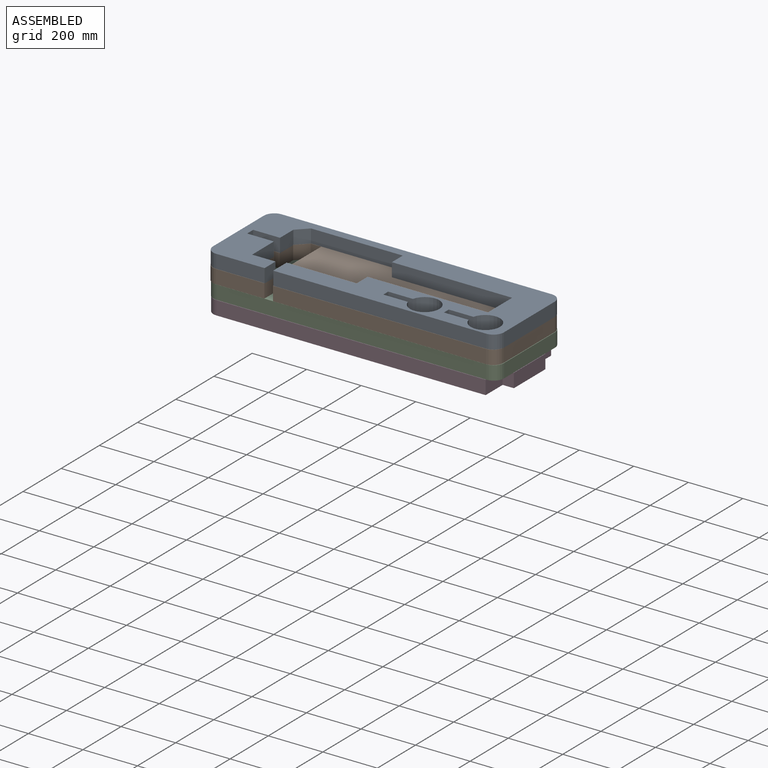
[diagram: assembled view]
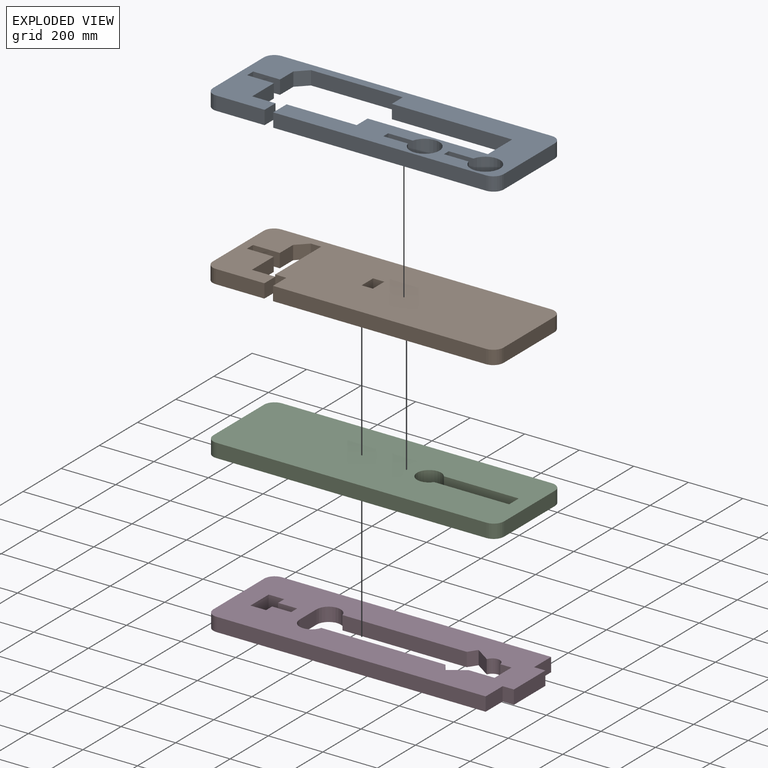
[diagram: exploded view]
GUIDED TOUR — MATED ASSEMBLY (Onshape document 7580505ec4c235a36268347d, AutoMate assembly 7580505ec4c235a36268347d_f68390bac710142e253799e7_36576ef746f60c5ac57179f1_default)

This assembly has 4 components, labeled P0..P3 below (a component is one placed occurrence of a part; the same part can appear more than once), held together by 3 mates. A mate is a constraint between two components; its type names the relative motion it leaves free:
  PARALLEL — keeps the two listed directions parallel.
Axis/direction vectors are unit vectors and 'through' points are millimeter coordinates, both in the assembly's world frame.

MATES
  1. PARALLEL "Parallel 3": P3 <-> P2, direction (0.000, 0.000, 1.000) through (-491.41, -96.13, -259.57) mm
  2. PARALLEL "Parallel 1": P0 <-> P1, direction (0.000, 0.000, -1.000) through (-16.39, -142.44, -157.36) mm
  3. PARALLEL "Parallel 2": P2 <-> P1, direction (0.000, 0.000, 1.000) through (-51.07, -143.92, -207.61) mm

ASSEMBLY ORDER
  1. P1 — the base component [order verified]
  2. P0 [order verified]
  3. P2 [order verified]
  4. P3 [order verified]
Order-tag legend:
  [order verified] — this step's position reverses a verified removal order: the component was checked to insert without passing through the ones already placed.

Of the 4 components, 4 carry the full construction recipe — the FeatureScript program that regenerates the part's solid from scratch; the rest are supplied as boundary geometry only.
Each toured component is shown spotlighted twice — in the assembled view, then in the exploded view, where a leader line traces a displaced component back to its assembled socket (saturated green if recipe-attached, orange if geometry-only; every other component desaturated gray) — followed by its recipe or geometry summary and the mates that hold it.
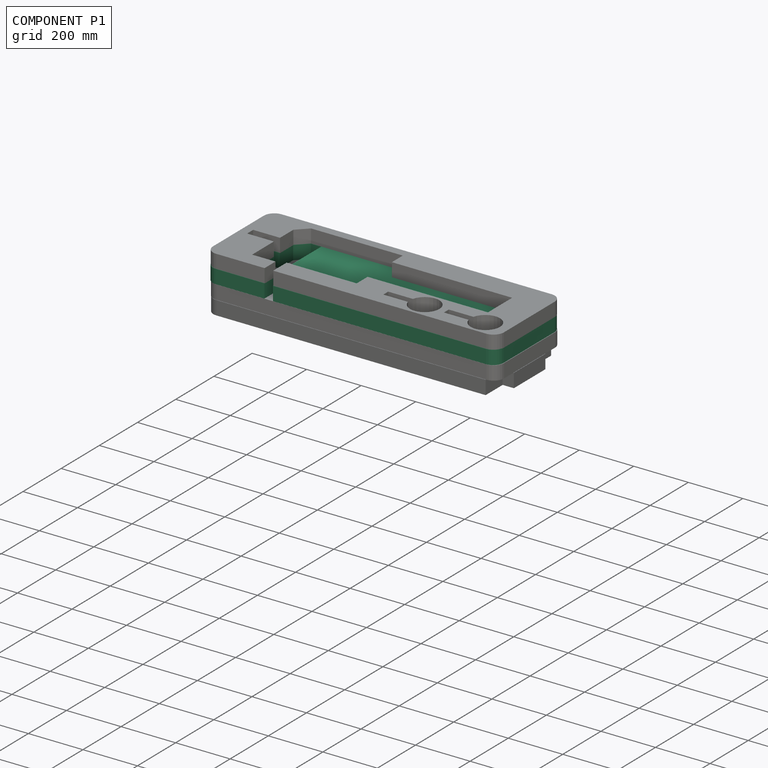
[diagram: component P1 — assembled]
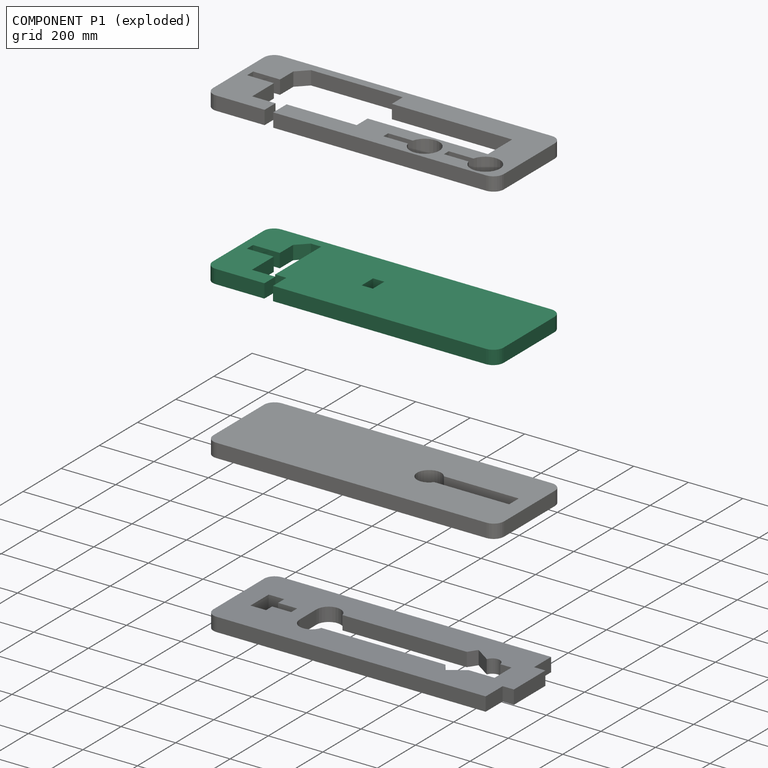
[diagram: component P1 — exploded]
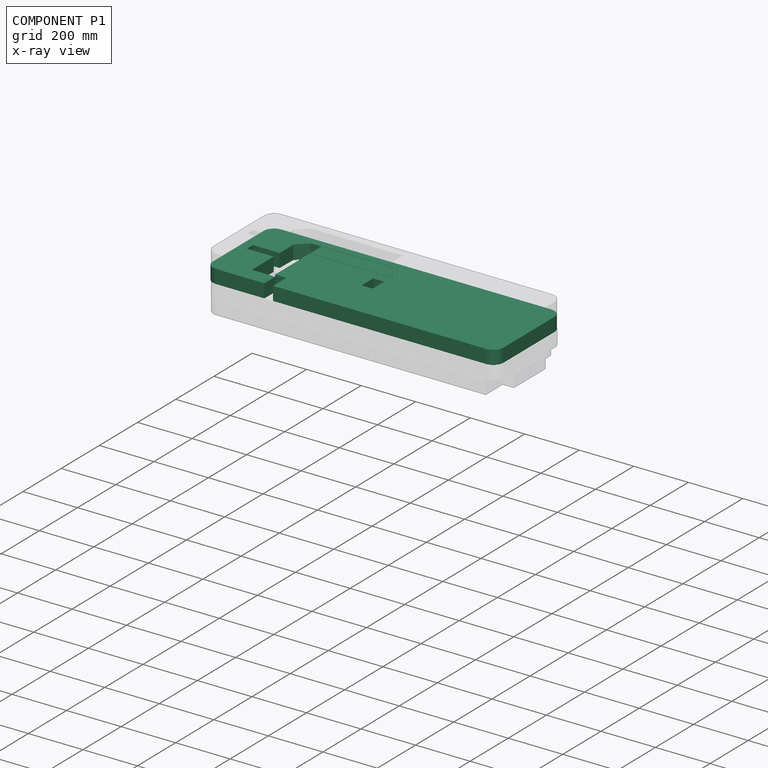
[diagram: component P1 — x-ray view]
COMPONENT P1 — recipe-attached (CADFS 00443604, mesh-verified: the recipe's output STEP matches this component's geometry to below the mesh-comparison resolution (tessellation chordal tolerance ~1.68 mm)).
Held by: PARALLEL mate "Parallel 1" to P0; PARALLEL mate "Parallel 2" to P2.
Construction recipe (FeatureScript — the CAD program that rebuilds this solid; sketch coordinates are in the units given by the * unit suffixes, e.g. mm):

FeatureScript 1540;
import(path : "onshape/std/geometry.fs", version : "1540.0");
import(path : "onshape/std/common.fs", version : "1540.0");
const mm = millimeter;
const VERTEX = EntityType.VERTEX;
const EDGE = EntityType.EDGE;
const FACE = EntityType.FACE;
const BODY = EntityType.BODY;
function v(x, y){return vector(x, y);}
function OD(order){return orderDisambiguation(order);}
function OSD(set){return originalSetDisambiguation(set);}
function TD(topology){return topologyDisambiguation(topology);}
function TDD(query){return trueDependencyDisambiguation(query);}
function sQuery(a, b, c) {return sketchEntityQuery(a, b, c);}

annotation { "Feature Type Name" : "Feature", "Feature Type Description" : "" }
export const myFeature = defineFeature(function(context is Context, id is Id, definition is map)
    precondition{}
    {
        {
            var Q0;
            Q0=qCreatedBy(makeId("Top.planeOp"),FACE);
            var sketch = newSketch(context, id + "F0", { "sketchPlane" : qUnion([Q0])});
            skLineSegment(sketch, "E0.bottom", {"start": v(533.4, -171.45) * mm, "end": v(-533.4, -171.45) * mm});
            skLineSegment(sketch, "E0.top", {"start": v(533.4, 171.45) * mm, "end": v(-533.4, 171.45) * mm});
            skLineSegment(sketch, "E0.left", {"start": v(533.4, -171.45) * mm, "end": v(533.4, 171.45) * mm});
            skLineSegment(sketch, "E0.right", {"start": v(-533.4, -171.45) * mm, "end": v(-533.4, 171.45) * mm});
            skPoint(sketch, "E0.middle", {"position": v(0, 0) * mm});
            skSolve(sketch);
        }
        {
            var Q0;
            Q0=qSketchRegion(id+"F0",true);
            extrude(context, id + "F1", {"entities" : qUnion([Q0]), "depth" : 50.8 * mm});
        }
        {
            var Q0;
            Q0=makeQuery(id+"F1.opExtrude","CAP_FACE",FACE,{"disambiguationData":[OSD([sQuery(id+"F0.wireOp",EDGE,"E0.bottom"),sQuery(id+"F0.wireOp",EDGE,"E0.top"),sQuery(id+"F0.wireOp",EDGE,"E0.left"),sQuery(id+"F0.wireOp",EDGE,"E0.right")])],"isStart":false});
            var sketch = newSketch(context, id + "F2", { "sketchPlane" : qUnion([Q0])});
            skLineSegment(sketch, "E1", {"start": v(-317.5, -171.45) * mm, "end": v(-285.75, -171.45) * mm});
            skLineSegment(sketch, "E2", {"start": v(-317.5, -171.45) * mm, "end": v(-317.5, -114.3) * mm});
            skLineSegment(sketch, "E3", {"start": v(-285.75, -171.45) * mm, "end": v(-285.75, -101.6) * mm});
            skLineSegment(sketch, "E4", {"start": v(-327.03, -101.6) * mm, "end": v(-285.75, -101.6) * mm});
            skLineSegment(sketch, "E5", {"start": v(-403.23, 101.54) * mm, "end": v(-403.23, 31.75) * mm});
            skLineSegment(sketch, "E6", {"start": v(-403.23, 31.75) * mm, "end": v(-501.65, 31.75) * mm});
            skLineSegment(sketch, "E7", {"start": v(-501.65, 31.75) * mm, "end": v(-501.65, 0) * mm});
            skLineSegment(sketch, "E8", {"start": v(-501.65, 0) * mm, "end": v(-403.23, 0) * mm});
            skLineSegment(sketch, "E9", {"start": v(-403.23, 0) * mm, "end": v(-403.23, -114.3) * mm});
            skLineSegment(sketch, "E10", {"start": v(-403.22, -114.3) * mm, "end": v(-317.5, -114.3) * mm});
            skLineSegment(sketch, "E11", {"start": v(-327.03, 139.7) * mm, "end": v(-365.13, 139.7) * mm});
            skLineSegment(sketch, "E12", {"start": v(-365.13, 139.7) * mm, "end": v(-403.23, 101.54) * mm});
            skLineSegment(sketch, "E13", {"start": v(-327.03, 139.7) * mm, "end": v(-327.03, -101.6) * mm});
            skLineSegment(sketch, "E14.bottom", {"start": v(-28.58, -15.87) * mm, "end": v(-69.85, -15.87) * mm});
            skLineSegment(sketch, "E14.top", {"start": v(-28.58, 44.45) * mm, "end": v(-69.85, 44.45) * mm});
            skLineSegment(sketch, "E14.left", {"start": v(-28.58, -15.87) * mm, "end": v(-28.58, 44.45) * mm});
            skLineSegment(sketch, "E14.right", {"start": v(-69.85, -15.87) * mm, "end": v(-69.85, 44.45) * mm});
            skPoint(sketch, "E14.middle", {"position": v(-49.21, 14.29) * mm});
            skSolve(sketch);
        }
        {
            var Q0;
            Q0=qSketchRegion(id+"F2",true);
            extrude(context, id + "F3", {"entities" : qUnion([Q0]), "operationType" : NewBodyOperationType.REMOVE, "oppositeDirection" : true, "depth" : 50.8 * mm});
        }
        {
            var Q0;
            Q0=makeQuery(id+"F1.opExtrude","SWEPT_EDGE",EDGE,{"disambiguationData":[OSD([sQuery(id+"F0.wireOp",EDGE,"E0.top"),sQuery(id+"F0.wireOp",EDGE,"E0.right")])]});
            var Q1;
            Q1=makeQuery(id+"F1.opExtrude","SWEPT_EDGE",EDGE,{"disambiguationData":[OSD([sQuery(id+"F0.wireOp",EDGE,"E0.bottom"),sQuery(id+"F0.wireOp",EDGE,"E0.right")])]});
            var Q2;
            Q2=makeQuery(id+"F1.opExtrude","SWEPT_EDGE",EDGE,{"disambiguationData":[OSD([sQuery(id+"F0.wireOp",EDGE,"E0.top"),sQuery(id+"F0.wireOp",EDGE,"E0.left")])]});
            var Q3;
            Q3=makeQuery(id+"F1.opExtrude","SWEPT_EDGE",EDGE,{"disambiguationData":[OSD([sQuery(id+"F0.wireOp",EDGE,"E0.bottom"),sQuery(id+"F0.wireOp",EDGE,"E0.left")])]});
            fillet(context, id + "F4", {"entities" : qUnion([Q0, Q1, Q2, Q3]), "radius" : 38.1 * mm, "tangentPropagation" : true, "allowEdgeOverflow" : false});
        }
    });
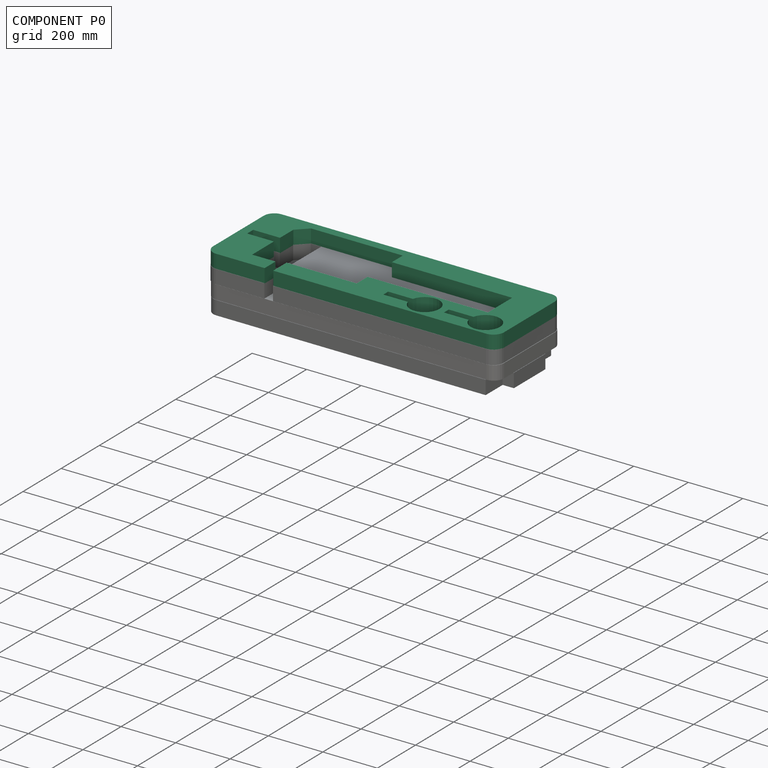
[diagram: component P0 — assembled]
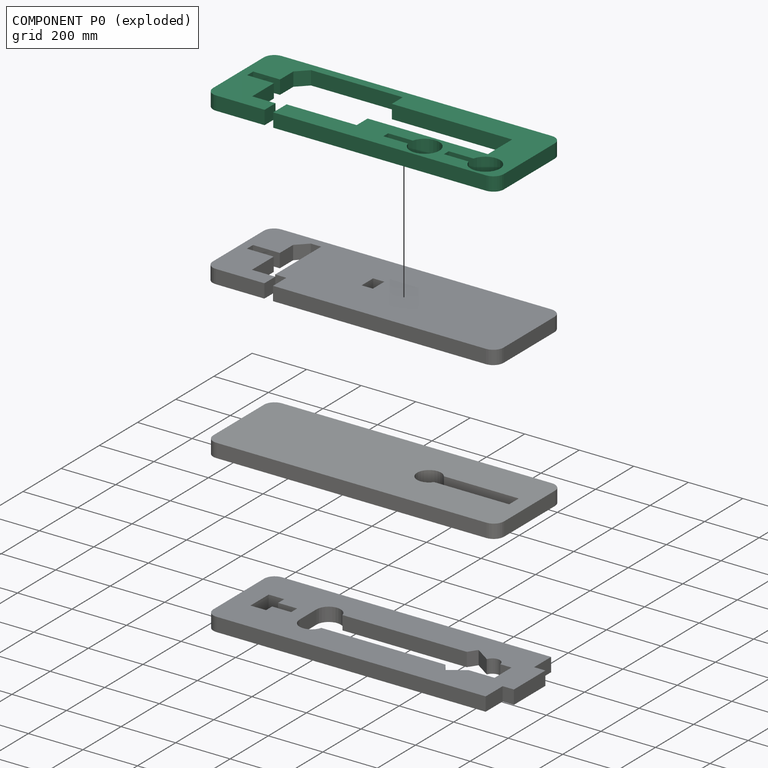
[diagram: component P0 — exploded]
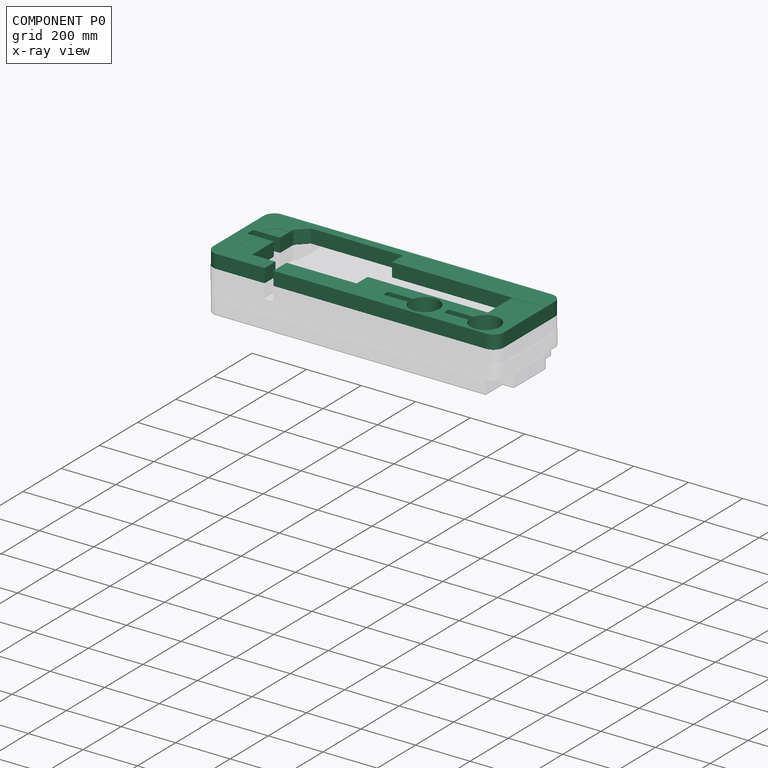
[diagram: component P0 — x-ray view]
COMPONENT P0 — recipe-attached (CADFS 00443603, mesh-verified: the recipe's output STEP matches this component's geometry to below the mesh-comparison resolution (tessellation chordal tolerance ~1.68 mm)).
Held by: PARALLEL mate "Parallel 1" to P1.
Construction recipe (FeatureScript — the CAD program that rebuilds this solid; sketch coordinates are in the units given by the * unit suffixes, e.g. mm):

FeatureScript 1540;
import(path : "onshape/std/geometry.fs", version : "1540.0");
import(path : "onshape/std/common.fs", version : "1540.0");
const mm = millimeter;
const VERTEX = EntityType.VERTEX;
const EDGE = EntityType.EDGE;
const FACE = EntityType.FACE;
const BODY = EntityType.BODY;
function v(x, y){return vector(x, y);}
function OD(order){return orderDisambiguation(order);}
function OSD(set){return originalSetDisambiguation(set);}
function TD(topology){return topologyDisambiguation(topology);}
function TDD(query){return trueDependencyDisambiguation(query);}
function sQuery(a, b, c) {return sketchEntityQuery(a, b, c);}

annotation { "Feature Type Name" : "Feature", "Feature Type Description" : "" }
export const myFeature = defineFeature(function(context is Context, id is Id, definition is map)
    precondition{}
    {
        {
            var Q0;
            Q0=qCreatedBy(makeId("Top.planeOp"),FACE);
            var sketch = newSketch(context, id + "F0", { "sketchPlane" : qUnion([Q0])});
            skLineSegment(sketch, "E0.bottom", {"start": v(533.4, -171.45) * mm, "end": v(-533.4, -171.45) * mm});
            skLineSegment(sketch, "E0.top", {"start": v(533.4, 171.45) * mm, "end": v(-533.4, 171.45) * mm});
            skLineSegment(sketch, "E0.left", {"start": v(533.4, -171.45) * mm, "end": v(533.4, 171.45) * mm});
            skLineSegment(sketch, "E0.right", {"start": v(-533.4, -171.45) * mm, "end": v(-533.4, 171.45) * mm});
            skPoint(sketch, "E0.middle", {"position": v(0, 0) * mm});
            skSolve(sketch);
        }
        {
            var Q0;
            Q0 = qSketchRegion(id + "F0", true);
            extrude(context, id + "F1", {"entities" : qUnion([Q0]), "depth" : 50.8 * mm});
        }
        {
            var Q0;
            Q0=makeQuery(id+"F1.opExtrude","CAP_FACE",FACE,{"disambiguationData":[OSD([sQuery(id+"F0.wireOp",EDGE,"E0.bottom"),sQuery(id+"F0.wireOp",EDGE,"E0.top"),sQuery(id+"F0.wireOp",EDGE,"E0.left"),sQuery(id+"F0.wireOp",EDGE,"E0.right")])],"isStart":false});
            var sketch = newSketch(context, id + "F2", { "sketchPlane" : qUnion([Q0])});
            skLineSegment(sketch, "E1", {"start": v(-317.5, -171.45) * mm, "end": v(-285.75, -171.45) * mm});
            skLineSegment(sketch, "E2", {"start": v(412.75, 82.55) * mm, "end": v(-28.57, 82.55) * mm});
            skLineSegment(sketch, "E3", {"start": v(-28.57, 82.55) * mm, "end": v(-28.57, 139.7) * mm});
            skLineSegment(sketch, "E4", {"start": v(-317.5, -171.45) * mm, "end": v(-317.5, -114.3) * mm});
            skLineSegment(sketch, "E5", {"start": v(-285.75, -171.45) * mm, "end": v(-285.75, -101.6) * mm});
            skLineSegment(sketch, "E6", {"start": v(-285.75, -101.6) * mm, "end": v(-28.57, -101.6) * mm});
            skLineSegment(sketch, "E7", {"start": v(-28.57, -101.6) * mm, "end": v(-28.57, -44.45) * mm});
            skLineSegment(sketch, "E8", {"start": v(-28.57, -44.45) * mm, "end": v(412.75, -44.45) * mm});
            skLineSegment(sketch, "E9", {"start": v(412.75, -44.45) * mm, "end": v(412.75, 82.55) * mm});
            skLineSegment(sketch, "E10", {"start": v(-403.23, 101.54) * mm, "end": v(-403.23, 31.75) * mm});
            skLineSegment(sketch, "E11", {"start": v(-403.23, 31.75) * mm, "end": v(-501.65, 31.75) * mm});
            skLineSegment(sketch, "E12", {"start": v(-501.65, 31.75) * mm, "end": v(-501.65, 0) * mm});
            skLineSegment(sketch, "E13", {"start": v(-501.65, 0) * mm, "end": v(-403.23, 0) * mm});
            skLineSegment(sketch, "E14", {"start": v(-403.23, 0) * mm, "end": v(-403.23, -114.3) * mm});
            skLineSegment(sketch, "E15", {"start": v(-403.22, -114.3) * mm, "end": v(-317.5, -114.3) * mm});
            skLineSegment(sketch, "E16", {"start": v(-28.57, 139.7) * mm, "end": v(-365.13, 139.7) * mm});
            skLineSegment(sketch, "E17", {"start": v(-365.13, 139.7) * mm, "end": v(-403.23, 101.54) * mm});
            skSolve(sketch);
        }
        {
            var Q0;
            Q0 = qSketchRegion(id + "F2", true);
            extrude(context, id + "F3", {"entities" : qUnion([Q0]), "operationType" : NewBodyOperationType.REMOVE, "oppositeDirection" : true, "depth" : 50.8 * mm});
        }
        {
            var Q0;
            Q0=makeQuery(id+"F1.opExtrude","SWEPT_EDGE",EDGE,{"disambiguationData":[OSD([sQuery(id+"F0.wireOp",EDGE,"E0.top"),sQuery(id+"F0.wireOp",EDGE,"E0.right")])]});
            var Q1;
            Q1=makeQuery(id+"F1.opExtrude","SWEPT_EDGE",EDGE,{"disambiguationData":[OSD([sQuery(id+"F0.wireOp",EDGE,"E0.bottom"),sQuery(id+"F0.wireOp",EDGE,"E0.right")])]});
            var Q2;
            Q2=makeQuery(id+"F1.opExtrude","SWEPT_EDGE",EDGE,{"disambiguationData":[OSD([sQuery(id+"F0.wireOp",EDGE,"E0.top"),sQuery(id+"F0.wireOp",EDGE,"E0.left")])]});
            var Q3;
            Q3=makeQuery(id+"F1.opExtrude","SWEPT_EDGE",EDGE,{"disambiguationData":[OSD([sQuery(id+"F0.wireOp",EDGE,"E0.bottom"),sQuery(id+"F0.wireOp",EDGE,"E0.left")])]});
            fillet(context, id + "F4", {"entities" : qUnion([Q0, Q1, Q2, Q3]), "radius" : 38.1 * mm, "tangentPropagation" : true, "allowEdgeOverflow" : false});
        }
        {
            var Q0;
            Q0=makeQuery(id+"F1.opExtrude","CAP_FACE",FACE,{"disambiguationData":[OSD([sQuery(id+"F0.wireOp",EDGE,"E0.bottom"),sQuery(id+"F0.wireOp",EDGE,"E0.top"),sQuery(id+"F0.wireOp",EDGE,"E0.left"),sQuery(id+"F0.wireOp",EDGE,"E0.right")])],"isStart":false});
            var sketch = newSketch(context, id + "F5", { "sketchPlane" : qUnion([Q0])});
            skLineSegment(sketch, "E18", {"start": v(82.55, -95.25) * mm, "end": v(82.55, -120.65) * mm});
            skCircle(sketch, "E19", {"center": v(225.43, -107.95) * mm, "radius": 53.97 * mm});
            skPoint(sketch, "E19.centerSnap0", {"position": v(82.55, -107.95) * mm});
            skLineSegment(sketch, "E20", {"start": v(82.55, -95.25) * mm, "end": v(172.97, -95.25) * mm});
            skLineSegment(sketch, "E21", {"start": v(82.55, -120.65) * mm, "end": v(172.97, -120.65) * mm});
            skSolve(sketch);
        }
        {
            var Q0;
            Q0 = qSketchRegion(id + "F5", true);
            extrude(context, id + "F6", {"entities" : qUnion([Q0]), "operationType" : NewBodyOperationType.REMOVE, "oppositeDirection" : true, "depth" : 50.8 * mm});
        }
        {
            var Q0;
            Q0=makeQuery(id+"F1.opExtrude","CAP_FACE",FACE,{"disambiguationData":[OSD([sQuery(id+"F0.wireOp",EDGE,"E0.bottom"),sQuery(id+"F0.wireOp",EDGE,"E0.top"),sQuery(id+"F0.wireOp",EDGE,"E0.left"),sQuery(id+"F0.wireOp",EDGE,"E0.right")])],"isStart":false});
            var sketch = newSketch(context, id + "F7", { "sketchPlane" : qUnion([Q0])});
            skLineSegment(sketch, "E22", {"start": v(304.8, -95.25) * mm, "end": v(304.8, -120.65) * mm});
            skCircle(sketch, "E23", {"center": v(447.68, -107.95) * mm, "radius": 53.97 * mm});
            skPoint(sketch, "E23.centerSnap0", {"position": v(304.8, -107.95) * mm});
            skLineSegment(sketch, "E24", {"start": v(304.8, -95.25) * mm, "end": v(395.22, -95.25) * mm});
            skLineSegment(sketch, "E25", {"start": v(304.8, -120.65) * mm, "end": v(395.22, -120.65) * mm});
            skSolve(sketch);
        }
        {
            var Q0;
            Q0 = qSketchRegion(id + "F7", true);
            extrude(context, id + "F8", {"entities" : qUnion([Q0]), "operationType" : NewBodyOperationType.REMOVE, "oppositeDirection" : true, "depth" : 50.8 * mm});
        }
    });
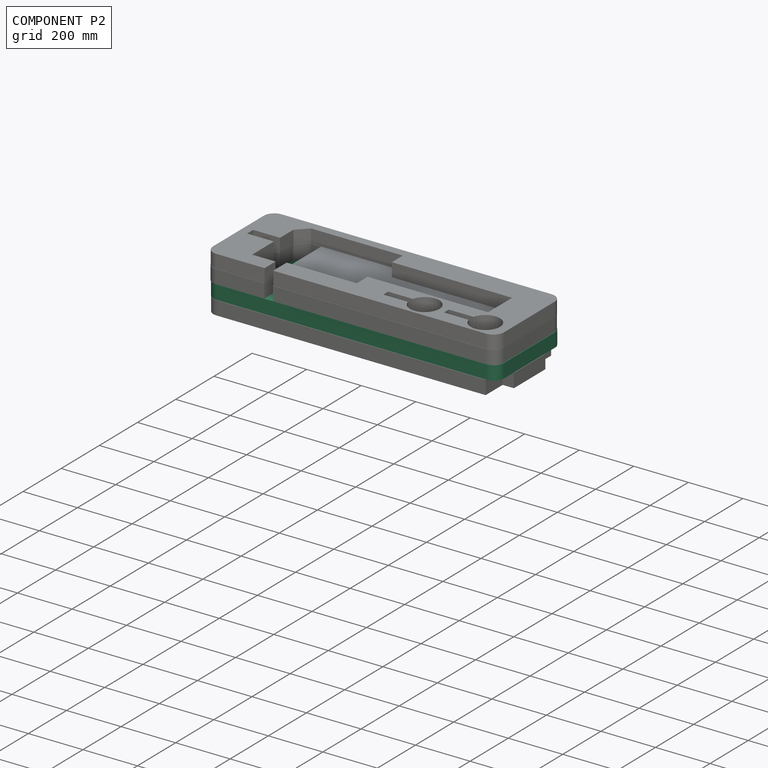
[diagram: component P2 — assembled]
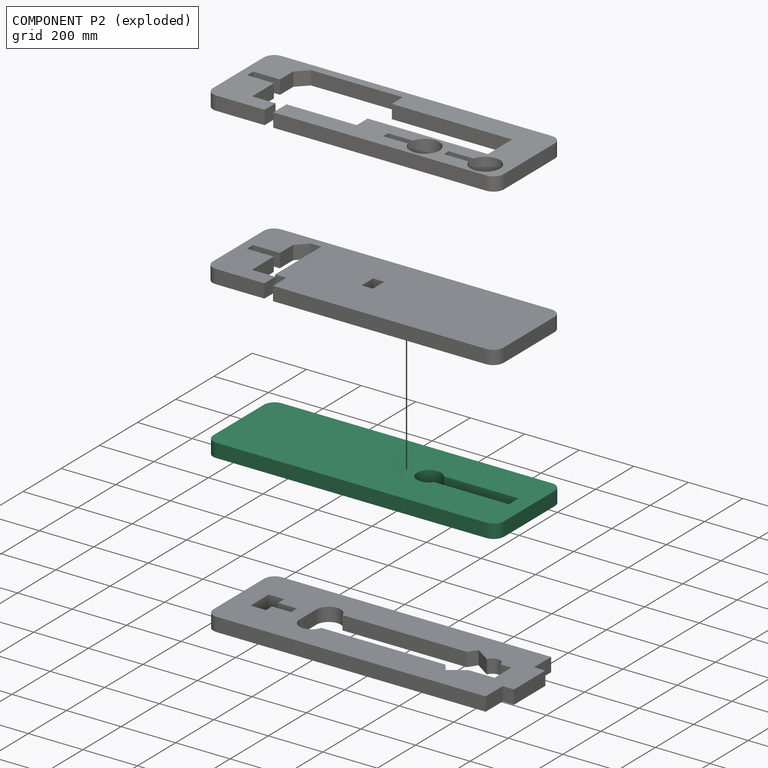
[diagram: component P2 — exploded]
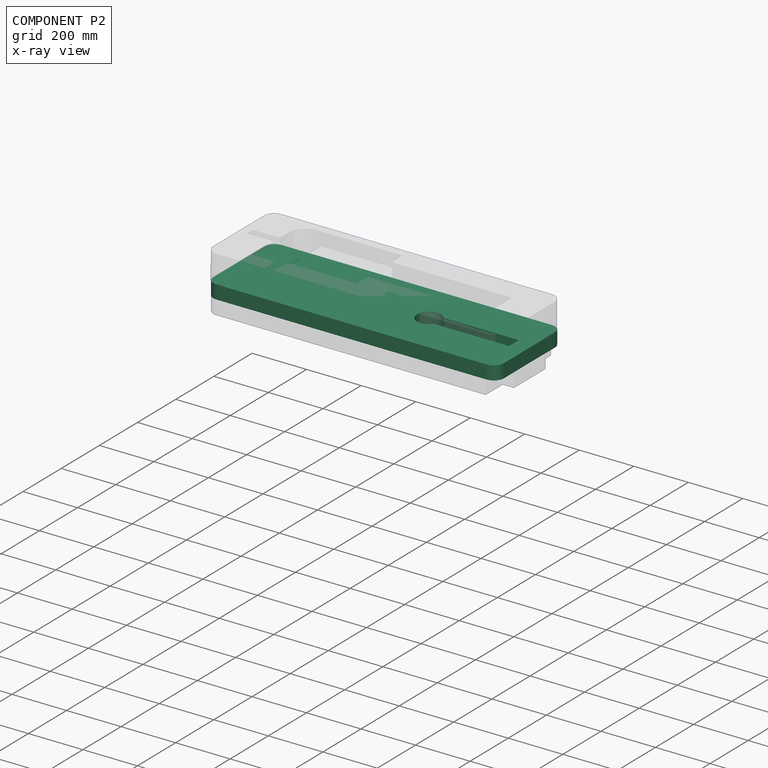
[diagram: component P2 — x-ray view]
COMPONENT P2 — recipe-attached (CADFS 00443606, mesh-verified: the recipe's output STEP matches this component's geometry to below the mesh-comparison resolution (tessellation chordal tolerance ~1.68 mm)).
Held by: PARALLEL mate "Parallel 3" to P3; PARALLEL mate "Parallel 2" to P1.
Construction recipe (FeatureScript — the CAD program that rebuilds this solid; sketch coordinates are in the units given by the * unit suffixes, e.g. mm):

FeatureScript 1540;
import(path : "onshape/std/geometry.fs", version : "1540.0");
import(path : "onshape/std/common.fs", version : "1540.0");
const mm = millimeter;
const VERTEX = EntityType.VERTEX;
const EDGE = EntityType.EDGE;
const FACE = EntityType.FACE;
const BODY = EntityType.BODY;
function v(x, y){return vector(x, y);}
function OD(order){return orderDisambiguation(order);}
function OSD(set){return originalSetDisambiguation(set);}
function TD(topology){return topologyDisambiguation(topology);}
function TDD(query){return trueDependencyDisambiguation(query);}
function sQuery(a, b, c) {return sketchEntityQuery(a, b, c);}

annotation { "Feature Type Name" : "Feature", "Feature Type Description" : "" }
export const myFeature = defineFeature(function(context is Context, id is Id, definition is map)
    precondition{}
    {
        {
            var Q0;
            Q0=qCreatedBy(makeId("Top.planeOp"),FACE);
            var sketch = newSketch(context, id + "F0", { "sketchPlane" : qUnion([Q0])});
            skLineSegment(sketch, "E0.bottom", {"start": v(533.4, -171.45) * mm, "end": v(-533.4, -171.45) * mm});
            skLineSegment(sketch, "E0.top", {"start": v(533.4, 171.45) * mm, "end": v(-533.4, 171.45) * mm});
            skLineSegment(sketch, "E0.left", {"start": v(533.4, -171.45) * mm, "end": v(533.4, 171.45) * mm});
            skLineSegment(sketch, "E0.right", {"start": v(-533.4, -171.45) * mm, "end": v(-533.4, 171.45) * mm});
            skPoint(sketch, "E0.middle", {"position": v(0, 0) * mm});
            skSolve(sketch);
        }
        {
            var Q0;
            Q0=qSketchRegion(id+"F0",true);
            extrude(context, id + "F1", {"entities" : qUnion([Q0]), "depth" : 50.8 * mm});
        }
        {
            var Q0;
            Q0=makeQuery(id+"F1.opExtrude","SWEPT_EDGE",EDGE,{"disambiguationData":[OSD([sQuery(id+"F0.wireOp",EDGE,"E0.top"),sQuery(id+"F0.wireOp",EDGE,"E0.right")])]});
            var Q1;
            Q1=makeQuery(id+"F1.opExtrude","SWEPT_EDGE",EDGE,{"disambiguationData":[OSD([sQuery(id+"F0.wireOp",EDGE,"E0.bottom"),sQuery(id+"F0.wireOp",EDGE,"E0.right")])]});
            var Q2;
            Q2=makeQuery(id+"F1.opExtrude","SWEPT_EDGE",EDGE,{"disambiguationData":[OSD([sQuery(id+"F0.wireOp",EDGE,"E0.top"),sQuery(id+"F0.wireOp",EDGE,"E0.left")])]});
            var Q3;
            Q3=makeQuery(id+"F1.opExtrude","SWEPT_EDGE",EDGE,{"disambiguationData":[OSD([sQuery(id+"F0.wireOp",EDGE,"E0.bottom"),sQuery(id+"F0.wireOp",EDGE,"E0.left")])]});
            fillet(context, id + "F2", {"entities" : qUnion([Q0, Q1, Q2, Q3]), "radius" : 38.1 * mm, "tangentPropagation" : true, "allowEdgeOverflow" : false});
        }
        {
            var Q0;
            Q0=makeQuery(id+"F1.opExtrude","CAP_FACE",FACE,{"disambiguationData":[OSD([sQuery(id+"F0.wireOp",EDGE,"E0.bottom"),sQuery(id+"F0.wireOp",EDGE,"E0.top"),sQuery(id+"F0.wireOp",EDGE,"E0.left"),sQuery(id+"F0.wireOp",EDGE,"E0.right")])],"isStart":false});
            var sketch = newSketch(context, id + "F3", { "sketchPlane" : qUnion([Q0])});
            skCircle(sketch, "E1", {"center": v(165.1, 0) * mm, "radius": 44.45 * mm});
            skLineSegment(sketch, "E2", {"start": v(201.58, 25.4) * mm, "end": v(476.25, 25.4) * mm});
            skLineSegment(sketch, "E3", {"start": v(476.25, 25.4) * mm, "end": v(476.25, -25.4) * mm});
            skLineSegment(sketch, "E4", {"start": v(476.25, -25.4) * mm, "end": v(201.58, -25.4) * mm});
            skSolve(sketch);
        }
        {
            var Q0;
            Q0 = qSketchRegion(id + "F3", true);
            extrude(context, id + "F4", {"entities" : qUnion([Q0]), "operationType" : NewBodyOperationType.REMOVE, "oppositeDirection" : true, "depth" : 50.8 * mm});
        }
    });
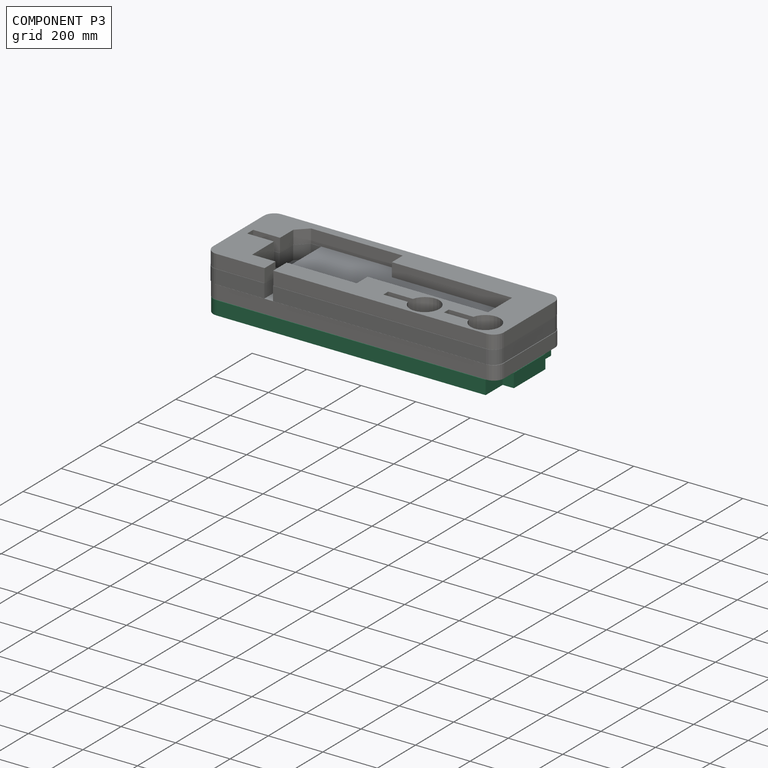
[diagram: component P3 — assembled]
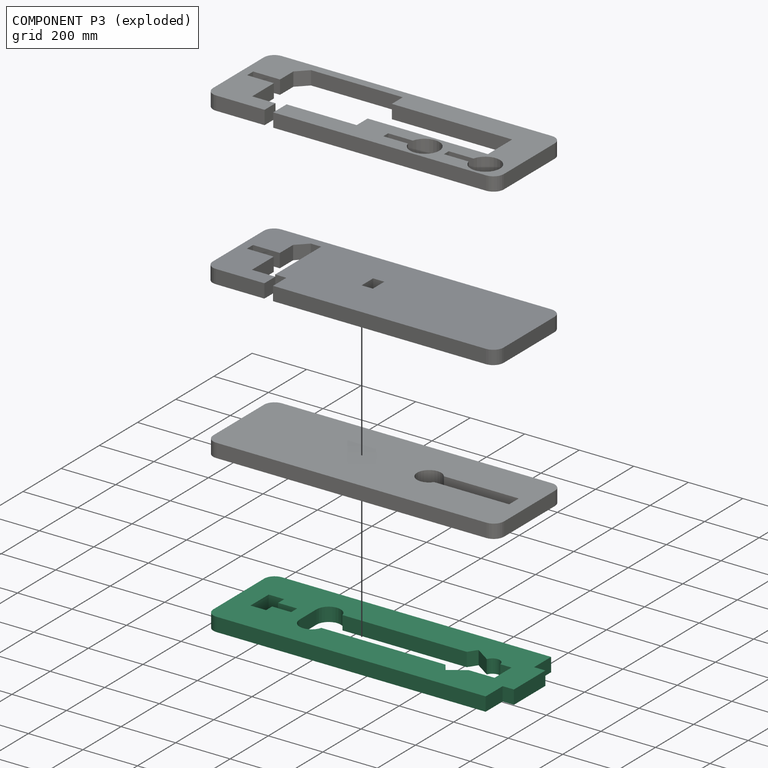
[diagram: component P3 — exploded]
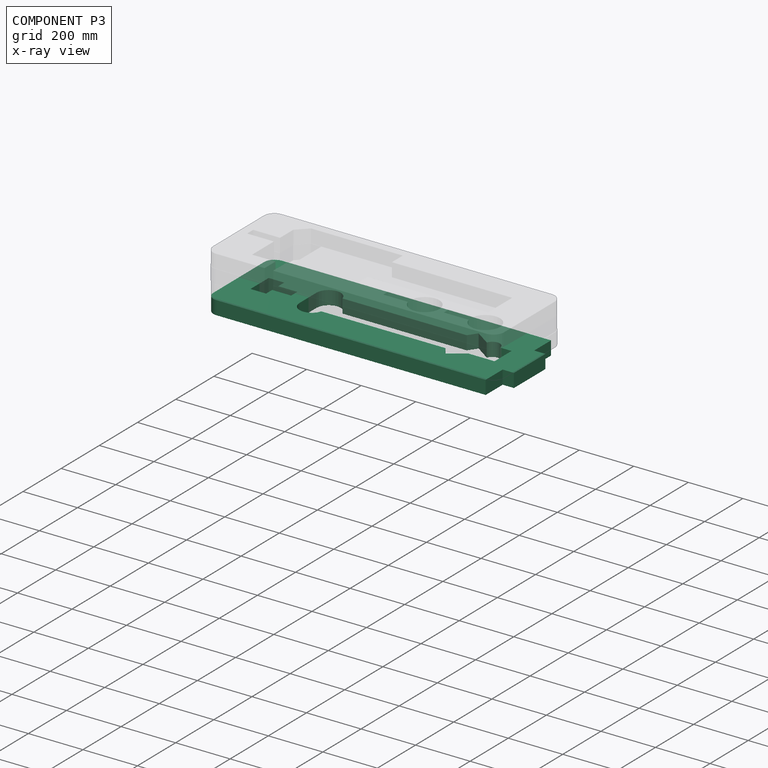
[diagram: component P3 — x-ray view]
COMPONENT P3 — recipe-attached (CADFS 00443607, mesh-verified: the recipe's output STEP matches this component's geometry to below the mesh-comparison resolution (tessellation chordal tolerance ~1.68 mm)).
Held by: PARALLEL mate "Parallel 3" to P2.
Construction recipe (FeatureScript — the CAD program that rebuilds this solid; sketch coordinates are in the units given by the * unit suffixes, e.g. mm):

FeatureScript 1540;
import(path : "onshape/std/geometry.fs", version : "1540.0");
import(path : "onshape/std/common.fs", version : "1540.0");
const mm = millimeter;
const VERTEX = EntityType.VERTEX;
const EDGE = EntityType.EDGE;
const FACE = EntityType.FACE;
const BODY = EntityType.BODY;
function v(x, y){return vector(x, y);}
function OD(order){return orderDisambiguation(order);}
function OSD(set){return originalSetDisambiguation(set);}
function TD(topology){return topologyDisambiguation(topology);}
function TDD(query){return trueDependencyDisambiguation(query);}
function sQuery(a, b, c) {return sketchEntityQuery(a, b, c);}

annotation { "Feature Type Name" : "Feature", "Feature Type Description" : "" }
export const myFeature = defineFeature(function(context is Context, id is Id, definition is map)
    precondition{}
    {
        {
            var Q0;
            Q0=qCreatedBy(makeId("Top.planeOp"),FACE);
            var sketch = newSketch(context, id + "F0", { "sketchPlane" : qUnion([Q0])});
            skLineSegment(sketch, "E0.bottom", {"start": v(533.4, -171.45) * mm, "end": v(-533.4, -171.45) * mm});
            skLineSegment(sketch, "E0.top", {"start": v(533.4, 171.45) * mm, "end": v(-533.4, 171.45) * mm});
            skLineSegment(sketch, "E0.left", {"start": v(533.4, -171.45) * mm, "end": v(533.4, 171.45) * mm});
            skLineSegment(sketch, "E0.right", {"start": v(-533.4, -171.45) * mm, "end": v(-533.4, 171.45) * mm});
            skPoint(sketch, "E0.middle", {"position": v(0, 0) * mm});
            skSolve(sketch);
        }
        {
            var Q0;
            Q0=qSketchRegion(id+"F0",true);
            extrude(context, id + "F1", {"entities" : qUnion([Q0]), "depth" : 50.8 * mm});
        }
        {
            var Q0;
            Q0=makeQuery(id+"F1.opExtrude","SWEPT_EDGE",EDGE,{"disambiguationData":[OSD([sQuery(id+"F0.wireOp",EDGE,"E0.top"),sQuery(id+"F0.wireOp",EDGE,"E0.right")])]});
            var Q1;
            Q1=makeQuery(id+"F1.opExtrude","SWEPT_EDGE",EDGE,{"disambiguationData":[OSD([sQuery(id+"F0.wireOp",EDGE,"E0.bottom"),sQuery(id+"F0.wireOp",EDGE,"E0.right")])]});
            var Q2;
            Q2=makeQuery(id+"F1.opExtrude","SWEPT_EDGE",EDGE,{"disambiguationData":[OSD([sQuery(id+"F0.wireOp",EDGE,"E0.top"),sQuery(id+"F0.wireOp",EDGE,"E0.left")])]});
            var Q3;
            Q3=makeQuery(id+"F1.opExtrude","SWEPT_EDGE",EDGE,{"disambiguationData":[OSD([sQuery(id+"F0.wireOp",EDGE,"E0.bottom"),sQuery(id+"F0.wireOp",EDGE,"E0.left")])]});
            fillet(context, id + "F2", {"entities" : qUnion([Q0, Q1, Q2, Q3]), "radius" : 38.1 * mm, "tangentPropagation" : true, "allowEdgeOverflow" : false});
        }
        {
            var Q0;
            Q0=makeQuery(id+"F1.opExtrude","CAP_FACE",FACE,{"disambiguationData":[OSD([sQuery(id+"F0.wireOp",EDGE,"E0.bottom"),sQuery(id+"F0.wireOp",EDGE,"E0.top"),sQuery(id+"F0.wireOp",EDGE,"E0.left"),sQuery(id+"F0.wireOp",EDGE,"E0.right")])],"isStart":false});
            var sketch = newSketch(context, id + "F3", { "sketchPlane" : qUnion([Q0])});
            skLineSegment(sketch, "E1", {"start": v(492.13, 171.45) * mm, "end": v(492.13, 82.55) * mm});
            skLineSegment(sketch, "E2", {"start": v(492.13, 82.55) * mm, "end": v(533.4, 82.55) * mm});
            skLineSegment(sketch, "E3", {"start": v(492.13, -171.45) * mm, "end": v(492.13, -82.55) * mm});
            skLineSegment(sketch, "E4", {"start": v(492.13, -82.55) * mm, "end": v(533.4, -82.55) * mm});
            skLineSegment(sketch, "E5", {"start": v(533.4, -82.55) * mm, "end": v(533.4, -171.45) * mm});
            skLineSegment(sketch, "E6", {"start": v(533.4, -171.45) * mm, "end": v(492.13, -171.45) * mm});
            skLineSegment(sketch, "E7", {"start": v(492.13, 171.45) * mm, "end": v(533.4, 171.45) * mm});
            skLineSegment(sketch, "E8", {"start": v(533.4, 171.45) * mm, "end": v(533.4, 82.55) * mm});
            skSolve(sketch);
        }
        {
            var Q0;
            Q0 = qSketchRegion(id + "F3", true);
            extrude(context, id + "F4", {"entities" : qUnion([Q0]), "operationType" : NewBodyOperationType.REMOVE, "oppositeDirection" : true, "depth" : 50.8 * mm});
        }
        {
            var Q0;
            Q0=makeQuery(id+"F1.opExtrude","CAP_FACE",FACE,{"disambiguationData":[OSD([sQuery(id+"F0.wireOp",EDGE,"E0.bottom"),sQuery(id+"F0.wireOp",EDGE,"E0.top"),sQuery(id+"F0.wireOp",EDGE,"E0.left"),sQuery(id+"F0.wireOp",EDGE,"E0.right")])],"isStart":false});
            var sketch = newSketch(context, id + "F5", { "sketchPlane" : qUnion([Q0])});
            skLineSegment(sketch, "E9", {"start": v(-457.2, 47.62) * mm, "end": v(-457.2, -47.62) * mm});
            skLineSegment(sketch, "E10", {"start": v(-457.2, -47.63) * mm, "end": v(-400.05, -47.63) * mm});
            skLineSegment(sketch, "E11", {"start": v(-400.05, -47.63) * mm, "end": v(-400.05, -15.88) * mm});
            skLineSegment(sketch, "E12", {"start": v(-400.05, -15.88) * mm, "end": v(-330.2, -15.88) * mm});
            skLineSegment(sketch, "E13", {"start": v(-330.2, -15.88) * mm, "end": v(-330.2, 15.88) * mm});
            skLineSegment(sketch, "E14", {"start": v(-330.2, 15.88) * mm, "end": v(-400.05, 15.88) * mm});
            skLineSegment(sketch, "E15", {"start": v(-400.05, 15.88) * mm, "end": v(-400.05, 47.63) * mm});
            skLineSegment(sketch, "E16", {"start": v(-400.05, 47.63) * mm, "end": v(-457.2, 47.62) * mm});
            skSolve(sketch);
        }
        {
            var Q0;
            Q0=makeQuery(id+"F5.imprint","IMPRINT",FACE,{"disambiguationData":[TD([[makeQuery(id+"F5.imprint","IMPRINT",EDGE,{"derivedFrom":sQuery(id+"F5.wireOp",EDGE,"E9")}),-1.0]])]});
            var sketch = newSketch(context, id + "F6", { "sketchPlane" : qUnion([Q0])});
            skCircle(sketch, "E17", {"center": v(-234.95, 44.45) * mm, "radius": 44.45 * mm});
            skCircle(sketch, "E18", {"center": v(-234.95, -44.45) * mm, "radius": 44.45 * mm});
            skLineSegment(sketch, "E19", {"start": v(-191.91, 55.56) * mm, "end": v(263.73, 55.56) * mm});
            skLineSegment(sketch, "E20", {"start": v(263.73, 55.56) * mm, "end": v(285.22, 87.02) * mm});
            skLineSegment(sketch, "E21", {"start": v(396.87, 41.27) * mm, "end": v(438.15, 41.27) * mm});
            skLineSegment(sketch, "E22", {"start": v(342.9, -47.63) * mm, "end": v(285.22, -87.02) * mm});
            skLineSegment(sketch, "E23", {"start": v(285.22, 87.02) * mm, "end": v(342.9, 47.62) * mm});
            skLineSegment(sketch, "E24", {"start": v(-191.91, -55.56) * mm, "end": v(263.73, -55.56) * mm});
            skLineSegment(sketch, "E25", {"start": v(-279.4, 44.45) * mm, "end": v(-279.4, -44.45) * mm});
            skLineSegment(sketch, "E26", {"start": v(263.73, -55.56) * mm, "end": v(285.22, -87.02) * mm});
            skLineSegment(sketch, "E27", {"start": v(342.9, -47.63) * mm, "end": v(438.15, -47.63) * mm});
            skLineSegment(sketch, "E28", {"start": v(438.15, -47.63) * mm, "end": v(438.15, 41.27) * mm});
            skArc(sketch, "E29", {"start": v(396.87, 41.27) * mm, "mid": v(372.48, 66.49) * mm, "end": v(342.9, 47.62) * mm});
            skSolve(sketch);
        }
        {
            var Q0;
            Q0 = qSketchRegion(id + "F6", true);
            extrude(context, id + "F7", {"entities" : qUnion([Q0]), "operationType" : NewBodyOperationType.REMOVE, "oppositeDirection" : true, "depth" : 50.8 * mm});
        }
        {
            var Q0;
            Q0 = qSketchRegion(id + "F5", true);
            extrude(context, id + "F8", {"entities" : qUnion([Q0]), "operationType" : NewBodyOperationType.REMOVE, "oppositeDirection" : true, "depth" : 50.8 * mm});
        }
    });
PROVENANCE & LICENSES
Assembly (occurrences, transforms, mates, per-part STEP geometry): AutoMate dataset, Zenodo record 7776208, CC0.
Construction recipes: CADFS (HuggingFace VladPyatov/CADFS, CC-BY-4.0, layered over the ABC dataset), FeatureScript reconstruction programs keyed by ABC model id.
Join: ABC meta listings map ABC model id -> Onshape documentId; within a shared document, parts are matched by geometric signature (bounding-box dims + volume at 0.1% relative tolerance, exact B-rep face/solid counts).
Verification: 4 of this assembly's 4 components carry a recipe attachment, and every attachment is mesh-verified: the CADFS STEP and the AutoMate member STEP were compared as meshes in their shared local frame (symmetric sampled-point-to-mesh distance); worst across the 4 attachments: below the mesh-comparison resolution (tessellation chordal tolerance ~1.68 mm) on a 1122 mm part.
Renders: orthographic iso camera (az 35 / el 25); the floor grid conveys scale (grid pitch printed in each image; no ruler). In the exploded view each component is displaced by its stored offset vector: the offsets alone carry the explosion direction (mate normal/axis signs are not orientation cues and do not encode it), and separation distances are assigned per mate-chain, not proportionally to assembly-order depth.
